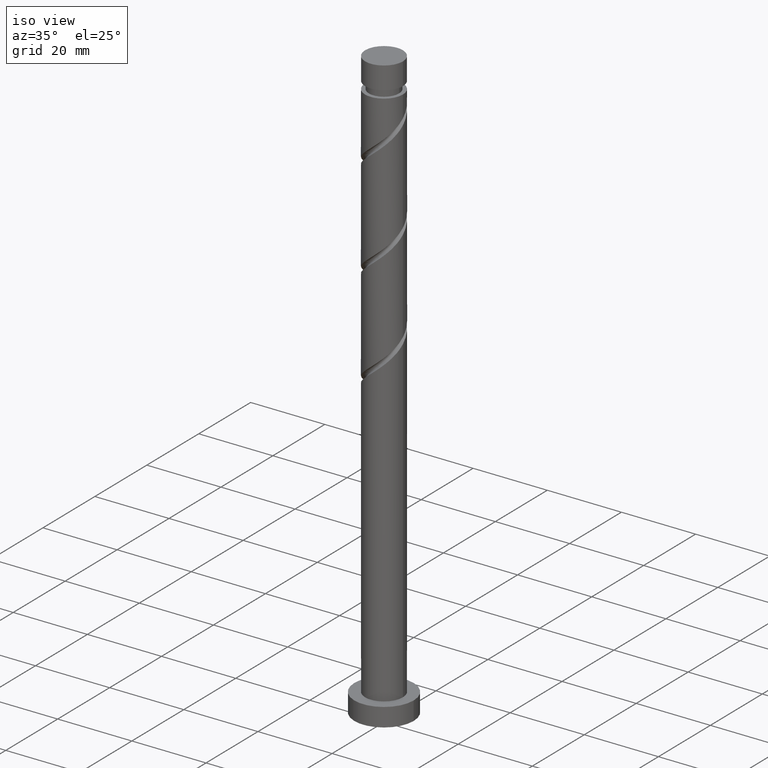
[diagram: clean part render]
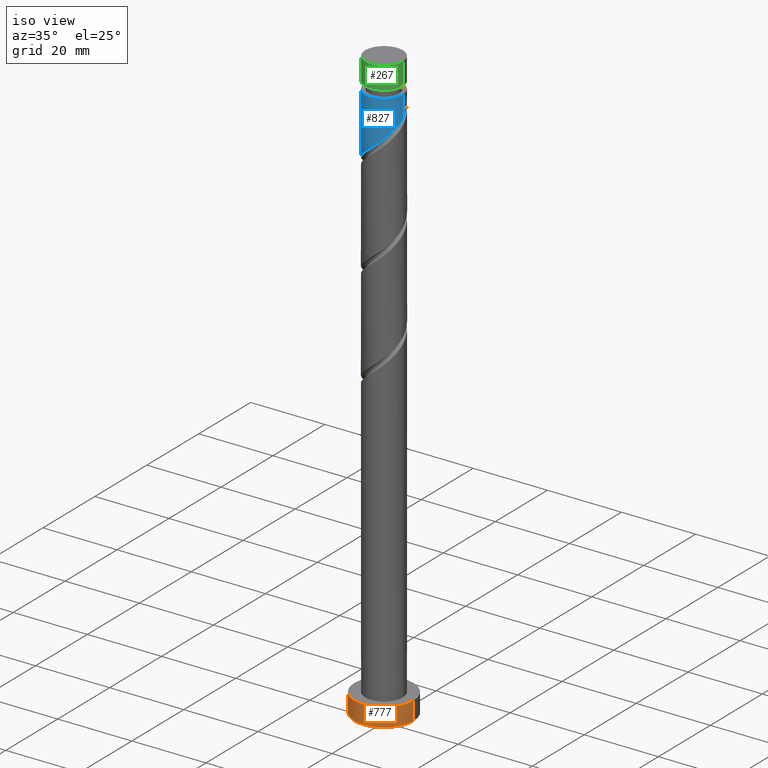
[diagram: same view with three faces highlighted in distinct colors, each labeled with its STEP entity id]
A machine part, iso view with three faces highlighted in distinct colors.
Their STEP definitions:

[orange] entity #777 — the highlighted cylindrical surface (edge-blend (fillet) strip) has radius 8 mm, axis along (-0, -0, -1).
#18 = AXIS2_PLACEMENT_3D ( 'NONE', #778, #496, #1298 ) ;
#72 = EDGE_CURVE ( 'NONE', #1004, #490, #1334, .T. ) ;
#218 = DIRECTION ( 'NONE',  ( -0.000000000000000000, -0.000000000000000000, -1.000000000000000000 ) ) ;
#236 = CARTESIAN_POINT ( 'NONE',  ( 8.000000000000000000, 9.797174393178825657E-16, 5.000000000000000000 ) ) ;
#250 = VECTOR ( 'NONE', #1031, 1000.000000000000000 ) ;
#270 = AXIS2_PLACEMENT_3D ( 'NONE', #1647, #487, #1001 ) ;
#321 = AXIS2_PLACEMENT_3D ( 'NONE', #979, #218, #950 ) ;
#359 = EDGE_CURVE ( 'NONE', #1004, #884, #1027, .T. ) ;
#423 = CARTESIAN_POINT ( 'NONE',  ( 8.000000000000000000, 9.797174393178825657E-16, 0.000000000000000000 ) ) ;
#437 = FACE_OUTER_BOUND ( 'NONE', #735, .T. ) ;
#464 = CIRCLE ( 'NONE', #18, 8.000000000000000000 ) ;
#487 = DIRECTION ( 'NONE',  ( 0.000000000000000000, 0.000000000000000000, 1.000000000000000000 ) ) ;
#490 = VERTEX_POINT ( 'NONE', #1573 ) ;
#496 = DIRECTION ( 'NONE',  ( 0.000000000000000000, 0.000000000000000000, 1.000000000000000000 ) ) ;
#579 = VERTEX_POINT ( 'NONE', #423 ) ;
#693 = DIRECTION ( 'NONE',  ( -0.000000000000000000, -0.000000000000000000, -1.000000000000000000 ) ) ;
#735 = EDGE_LOOP ( 'NONE', ( #840, #986, #1174, #1012 ) ) ;
#777 = ADVANCED_FACE ( 'NONE', ( #437 ), #847, .T. ) ;
#778 = CARTESIAN_POINT ( 'NONE',  ( 0.000000000000000000, 0.000000000000000000, 0.000000000000000000 ) ) ;
#840 = ORIENTED_EDGE ( 'NONE', *, *, #1184, .F. ) ;
#847 = CYLINDRICAL_SURFACE ( 'NONE', #321, 8.000000000000000000 ) ;
#876 = LINE ( 'NONE', #236, #250 ) ;
#884 = VERTEX_POINT ( 'NONE', #1186 ) ;
#950 = DIRECTION ( 'NONE',  ( -1.000000000000000000, 0.000000000000000000, 0.000000000000000000 ) ) ;
#979 = CARTESIAN_POINT ( 'NONE',  ( 0.000000000000000000, 0.000000000000000000, 5.000000000000000000 ) ) ;
#986 = ORIENTED_EDGE ( 'NONE', *, *, #359, .F. ) ;
#1001 = DIRECTION ( 'NONE',  ( 1.000000000000000000, 0.000000000000000000, 0.000000000000000000 ) ) ;
#1004 = VERTEX_POINT ( 'NONE', #1227 ) ;
#1012 = ORIENTED_EDGE ( 'NONE', *, *, #1427, .T. ) ;
#1027 = CIRCLE ( 'NONE', #270, 8.000000000000000000 ) ;
#1031 = DIRECTION ( 'NONE',  ( -0.000000000000000000, -0.000000000000000000, -1.000000000000000000 ) ) ;
#1051 = CARTESIAN_POINT ( 'NONE',  ( -8.000000000000000000, 0.000000000000000000, 5.000000000000000000 ) ) ;
#1174 = ORIENTED_EDGE ( 'NONE', *, *, #72, .T. ) ;
#1184 = EDGE_CURVE ( 'NONE', #884, #579, #876, .T. ) ;
#1186 = CARTESIAN_POINT ( 'NONE',  ( 8.000000000000000000, 9.797174393178825657E-16, 5.000000000000000000 ) ) ;
#1227 = CARTESIAN_POINT ( 'NONE',  ( -8.000000000000000000, 0.000000000000000000, 5.000000000000000000 ) ) ;
#1298 = DIRECTION ( 'NONE',  ( 1.000000000000000000, 0.000000000000000000, 0.000000000000000000 ) ) ;
#1334 = LINE ( 'NONE', #1051, #1431 ) ;
#1427 = EDGE_CURVE ( 'NONE', #490, #579, #464, .T. ) ;
#1431 = VECTOR ( 'NONE', #693, 1000.000000000000000 ) ;
#1573 = CARTESIAN_POINT ( 'NONE',  ( -8.000000000000000000, 0.000000000000000000, 0.000000000000000000 ) ) ;
#1647 = CARTESIAN_POINT ( 'NONE',  ( 0.000000000000000000, 0.000000000000000000, 5.000000000000000000 ) ) ;

[blue] entity #827 — the highlighted cylindrical surface (edge-blend (fillet) strip) has radius 5.1 mm, axis along (-0, -0, -1).
#36 = LINE ( 'NONE', #164, #170 ) ;
#58 = VERTEX_POINT ( 'NONE', #409 ) ;
#83 = CARTESIAN_POINT ( 'NONE',  ( 3.693490123188841956, -3.592466363838561882, 142.8324171285431703 ) ) ;
#164 = CARTESIAN_POINT ( 'NONE',  ( -5.100000000000001421, 0.000000000000000000, 160.0000000000000000 ) ) ;
#170 = VECTOR ( 'NONE', #1038, 1000.000000000000000 ) ;
#186 = VERTEX_POINT ( 'NONE', #1575 ) ;
#187 = CARTESIAN_POINT ( 'NONE',  ( 5.100000000000001421, -0.1467551852714879257, 145.9840160273682841 ) ) ;
#262 = CARTESIAN_POINT ( 'NONE',  ( 0.000000000000000000, 0.000000000000000000, 160.0000000000000000 ) ) ;
#344 = CARTESIAN_POINT ( 'NONE',  ( 0.4343221952601943325, -5.081472643900030839, 139.8021140982401676 ) ) ;
#409 = CARTESIAN_POINT ( 'NONE',  ( 5.100000000000000533, 8.674956008027995831E-16, 146.1061140320865093 ) ) ;
#418 = VERTEX_POINT ( 'NONE', #763 ) ;
#422 = DIRECTION ( 'NONE',  ( -0.000000000000000000, -0.000000000000000000, -1.000000000000000000 ) ) ;
#444 = EDGE_CURVE ( 'NONE', #1378, #418, #869, .T. ) ;
#453 = CARTESIAN_POINT ( 'NONE',  ( 5.049395566237103949, -1.025323500691387002, 145.2566595527856919 ) ) ;
#471 = ORIENTED_EDGE ( 'NONE', *, *, #1581, .F. ) ;
#553 = CARTESIAN_POINT ( 'NONE',  ( -5.099999999999999645, -0.5840975296641272019, 133.2587406517244517 ) ) ;
#563 = CARTESIAN_POINT ( 'NONE',  ( 4.124741339277075980, -2.999418090906762036, 143.4384777346037367 ) ) ;
#571 = CARTESIAN_POINT ( 'NONE',  ( 5.100000000000000533, 8.674956008027995831E-16, 146.1061140320865093 ) ) ;
#582 = CARTESIAN_POINT ( 'NONE',  ( 1.164927662982269574, -5.019026539621368244, 140.4081747043007056 ) ) ;
#586 = FACE_OUTER_BOUND ( 'NONE', #812, .T. ) ;
#674 = VECTOR ( 'NONE', #422, 1000.000000000000000 ) ;
#694 = CARTESIAN_POINT ( 'NONE',  ( 2.531763087263166234, -4.487522650124082801, 141.6202959164219237 ) ) ;
#704 = CARTESIAN_POINT ( 'NONE',  ( -2.381876442926734949, -4.509619120350484067, 137.3778716739977028 ) ) ;
#726 = CARTESIAN_POINT ( 'NONE',  ( -4.081538685709033665, -3.144634449735859150, 135.5596898558158614 ) ) ;
#763 = CARTESIAN_POINT ( 'NONE',  ( -5.099999999999996092, 0.000000000000000000, 151.9233262194522638 ) ) ;
#812 = EDGE_LOOP ( 'NONE', ( #471, #830, #1617, #1450 ) ) ;
#827 = ADVANCED_FACE ( 'NONE', ( #586 ), #1344, .T. ) ;
#830 = ORIENTED_EDGE ( 'NONE', *, *, #444, .T. ) ;
#832 = CARTESIAN_POINT ( 'NONE',  ( -4.441846140019165112, -2.505993389535748683, 134.9536292497552949 ) ) ;
#844 = CARTESIAN_POINT ( 'NONE',  ( -3.555900236163437977, -3.655895719307762359, 136.1657504618765131 ) ) ;
#869 = CIRCLE ( 'NONE', #1621, 5.099999999999996092 ) ;
#877 = CARTESIAN_POINT ( 'NONE',  ( 0.000000000000000000, 0.000000000000000000, 151.9233262194522638 ) ) ;
#890 = EDGE_CURVE ( 'NONE', #418, #186, #36, .T. ) ;
#899 = DIRECTION ( 'NONE',  ( -1.000000000000000000, 0.000000000000000000, 0.000000000000000000 ) ) ;
#913 = AXIS2_PLACEMENT_3D ( 'NONE', #262, #1533, #899 ) ;
#916 = CARTESIAN_POINT ( 'NONE',  ( 5.100000000000001421, 6.245698675651502811E-16, 160.0000000000000000 ) ) ;
#948 = EDGE_CURVE ( 'NONE', #58, #186, #1237, .T. ) ;
#953 = CARTESIAN_POINT ( 'NONE',  ( -0.2962832724618781888, -5.143918748178693434, 139.1960534921795158 ) ) ;
#963 = CARTESIAN_POINT ( 'NONE',  ( -4.802153594329291231, -1.867352329335635774, 134.3475686436947001 ) ) ;
#1038 = DIRECTION ( 'NONE',  ( -0.000000000000000000, -0.000000000000000000, -1.000000000000000000 ) ) ;
#1098 = CARTESIAN_POINT ( 'NONE',  ( 3.112626605226002319, -4.039994506981322786, 142.2263565224825186 ) ) ;
#1157 = DIRECTION ( 'NONE',  ( -1.000000000000000000, 0.000000000000000000, 0.000000000000000000 ) ) ;
#1218 = CARTESIAN_POINT ( 'NONE',  ( -1.014887185848754259, -4.997999999999999332, 138.5899928861188926 ) ) ;
#1237 =( BOUNDED_CURVE ( )  B_SPLINE_CURVE ( 2, ( #571, #187, #1336, #453, #1507, #1474, #563, #83, #1098, #694, #1239, #582, #344, #953, #1218, #1599, #704, #1591, #844, #726, #832, #963, #1467, #553, #1360 ),
 .UNSPECIFIED., .F., .T. ) 
 B_SPLINE_CURVE_WITH_KNOTS ( ( 3, 2, 2, 2, 2, 2, 2, 2, 2, 2, 2, 2, 3 ),
 ( 0.3045252162417512176, 0.3068181818181818232, 0.3181818181818181768, 0.3295454545454545303, 0.3409090909090908839, 0.3522727272727272929, 0.3636363636363636465, 0.3750000000000000000, 0.3863636363636363535, 0.3977272727272727071, 0.4090909090909091161, 0.4204545454545454697, 0.4295252162417513286 ),
 .UNSPECIFIED. ) 
 CURVE ( )  GEOMETRIC_REPRESENTATION_ITEM ( )  RATIONAL_B_SPLINE_CURVE ( ( 0.9061101570135524641, 0.9072237824201346834, 0.9090909090909122803, 0.8998376744372147407, 0.9090909090909122803, 0.8998376744372147407, 0.9090909090909122803, 0.8998376744372147407, 0.9090909090909122803, 0.8998376744372147407, 0.9090909090909122803, 0.8998376744372147407, 0.9090909090909122803, 0.8998376744372147407, 0.9090909090909122803, 0.8998376744372147407, 0.9090909090909122803, 0.8998376744372147407, 0.9090909090909122803, 0.8998376744372147407, 0.9090909090909122803, 0.8998376744372147407, 0.9090909090909122803, 0.9017048011079922265, 0.9061101570135526861 ) ) 
 REPRESENTATION_ITEM ( '' )  );
#1239 = CARTESIAN_POINT ( 'NONE',  ( 1.848345375122716794, -4.753274594872724634, 141.0142353103613004 ) ) ;
#1336 = CARTESIAN_POINT ( 'NONE',  ( 5.091561072240597063, -0.2932675359534175907, 145.8627201588462015 ) ) ;
#1344 = CYLINDRICAL_SURFACE ( 'NONE', #913, 5.100000000000001421 ) ;
#1360 = CARTESIAN_POINT ( 'NONE',  ( -5.100000000000000533, -1.944386691454550480E-15, 132.7727806987531096 ) ) ;
#1378 = VERTEX_POINT ( 'NONE', #1415 ) ;
#1396 = DIRECTION ( 'NONE',  ( -0.000000000000000000, -0.000000000000000000, -1.000000000000000000 ) ) ;
#1415 = CARTESIAN_POINT ( 'NONE',  ( 5.099999999999996092, 6.245698675651498867E-16, 151.9233262194522638 ) ) ;
#1450 = ORIENTED_EDGE ( 'NONE', *, *, #948, .F. ) ;
#1467 = CARTESIAN_POINT ( 'NONE',  ( -4.967940086286691148, -1.153070379060094242, 133.7415080376340768 ) ) ;
#1474 = CARTESIAN_POINT ( 'NONE',  ( 4.555992555365309116, -2.406369817974963077, 144.0445383406643884 ) ) ;
#1507 = CARTESIAN_POINT ( 'NONE',  ( 4.802694060801208309, -1.715846659333175150, 144.6505989467249549 ) ) ;
#1533 = DIRECTION ( 'NONE',  ( -0.000000000000000000, -0.000000000000000000, -1.000000000000000000 ) ) ;
#1575 = CARTESIAN_POINT ( 'NONE',  ( -5.100000000000000533, -1.944386691454550480E-15, 132.7727806987531096 ) ) ;
#1579 = LINE ( 'NONE', #916, #674 ) ;
#1581 = EDGE_CURVE ( 'NONE', #1378, #58, #1579, .T. ) ;
#1591 = CARTESIAN_POINT ( 'NONE',  ( -3.030261786617840514, -4.167156988879664681, 136.7718110679370795 ) ) ;
#1599 = CARTESIAN_POINT ( 'NONE',  ( -1.733491099235630495, -4.852081251821307006, 137.9839322800583261 ) ) ;
#1617 = ORIENTED_EDGE ( 'NONE', *, *, #890, .T. ) ;
#1621 = AXIS2_PLACEMENT_3D ( 'NONE', #877, #1396, #1157 ) ;

[green] entity #267 — the highlighted cylindrical surface (edge-blend (fillet) strip) has radius 5.1 mm, axis along (-0, -0, -1).
#20 = VERTEX_POINT ( 'NONE', #373 ) ;
#31 = CARTESIAN_POINT ( 'NONE',  ( 5.100000000000001421, 6.245698675651502811E-16, 160.0000000000000000 ) ) ;
#69 = DIRECTION ( 'NONE',  ( -1.000000000000000000, 0.000000000000000000, 0.000000000000000000 ) ) ;
#87 = DIRECTION ( 'NONE',  ( 1.000000000000000000, 0.000000000000000000, 0.000000000000000000 ) ) ;
#119 = DIRECTION ( 'NONE',  ( -0.000000000000000000, -0.000000000000000000, -1.000000000000000000 ) ) ;
#256 = CARTESIAN_POINT ( 'NONE',  ( 5.099999999999996092, 6.245698675651498867E-16, 153.9633262194522558 ) ) ;
#257 = CARTESIAN_POINT ( 'NONE',  ( 0.000000000000000000, 0.000000000000000000, 153.9633262194522558 ) ) ;
#267 = ADVANCED_FACE ( 'NONE', ( #745 ), #993, .T. ) ;
#320 = EDGE_LOOP ( 'NONE', ( #931, #882, #1130, #1225 ) ) ;
#373 = CARTESIAN_POINT ( 'NONE',  ( -5.099999999999996092, 0.000000000000000000, 153.9633262194522558 ) ) ;
#411 = EDGE_CURVE ( 'NONE', #1390, #20, #591, .T. ) ;
#457 = CARTESIAN_POINT ( 'NONE',  ( -5.100000000000001421, 0.000000000000000000, 160.0000000000000000 ) ) ;
#492 = AXIS2_PLACEMENT_3D ( 'NONE', #1232, #708, #69 ) ;
#514 = AXIS2_PLACEMENT_3D ( 'NONE', #257, #119, #769 ) ;
#552 = EDGE_CURVE ( 'NONE', #653, #1390, #1212, .T. ) ;
#591 = CIRCLE ( 'NONE', #514, 5.099999999999996092 ) ;
#653 = VERTEX_POINT ( 'NONE', #1476 ) ;
#672 = VECTOR ( 'NONE', #966, 1000.000000000000000 ) ;
#708 = DIRECTION ( 'NONE',  ( -0.000000000000000000, -0.000000000000000000, -1.000000000000000000 ) ) ;
#717 = DIRECTION ( 'NONE',  ( 0.000000000000000000, 0.000000000000000000, 1.000000000000000000 ) ) ;
#745 = FACE_OUTER_BOUND ( 'NONE', #320, .T. ) ;
#754 = EDGE_CURVE ( 'NONE', #1328, #20, #1100, .T. ) ;
#769 = DIRECTION ( 'NONE',  ( -1.000000000000000000, 0.000000000000000000, 0.000000000000000000 ) ) ;
#784 = AXIS2_PLACEMENT_3D ( 'NONE', #1469, #717, #87 ) ;
#790 = EDGE_CURVE ( 'NONE', #1328, #653, #940, .T. ) ;
#882 = ORIENTED_EDGE ( 'NONE', *, *, #790, .F. ) ;
#931 = ORIENTED_EDGE ( 'NONE', *, *, #552, .F. ) ;
#940 = CIRCLE ( 'NONE', #784, 5.100000000000001421 ) ;
#966 = DIRECTION ( 'NONE',  ( -0.000000000000000000, -0.000000000000000000, -1.000000000000000000 ) ) ;
#993 = CYLINDRICAL_SURFACE ( 'NONE', #492, 5.100000000000001421 ) ;
#1048 = DIRECTION ( 'NONE',  ( -0.000000000000000000, -0.000000000000000000, -1.000000000000000000 ) ) ;
#1100 = LINE ( 'NONE', #457, #672 ) ;
#1130 = ORIENTED_EDGE ( 'NONE', *, *, #754, .T. ) ;
#1212 = LINE ( 'NONE', #31, #1519 ) ;
#1225 = ORIENTED_EDGE ( 'NONE', *, *, #411, .F. ) ;
#1232 = CARTESIAN_POINT ( 'NONE',  ( 0.000000000000000000, 0.000000000000000000, 160.0000000000000000 ) ) ;
#1328 = VERTEX_POINT ( 'NONE', #1654 ) ;
#1390 = VERTEX_POINT ( 'NONE', #256 ) ;
#1469 = CARTESIAN_POINT ( 'NONE',  ( 0.000000000000000000, 0.000000000000000000, 160.0000000000000000 ) ) ;
#1476 = CARTESIAN_POINT ( 'NONE',  ( 5.100000000000001421, 6.245698675651502811E-16, 160.0000000000000000 ) ) ;
#1519 = VECTOR ( 'NONE', #1048, 1000.000000000000000 ) ;
#1654 = CARTESIAN_POINT ( 'NONE',  ( -5.100000000000001421, 0.000000000000000000, 160.0000000000000000 ) ) ;